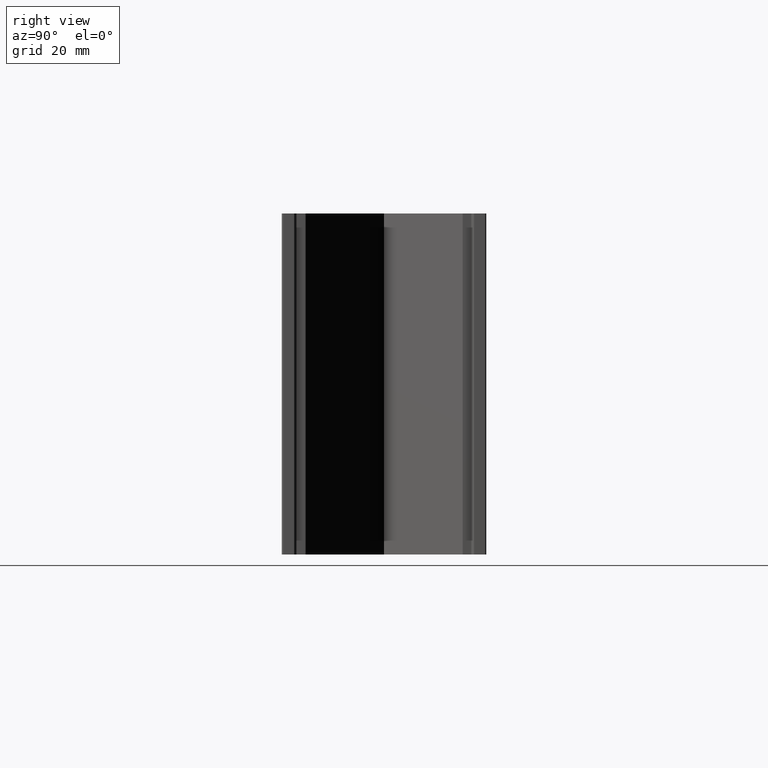
[diagram: clean part render]
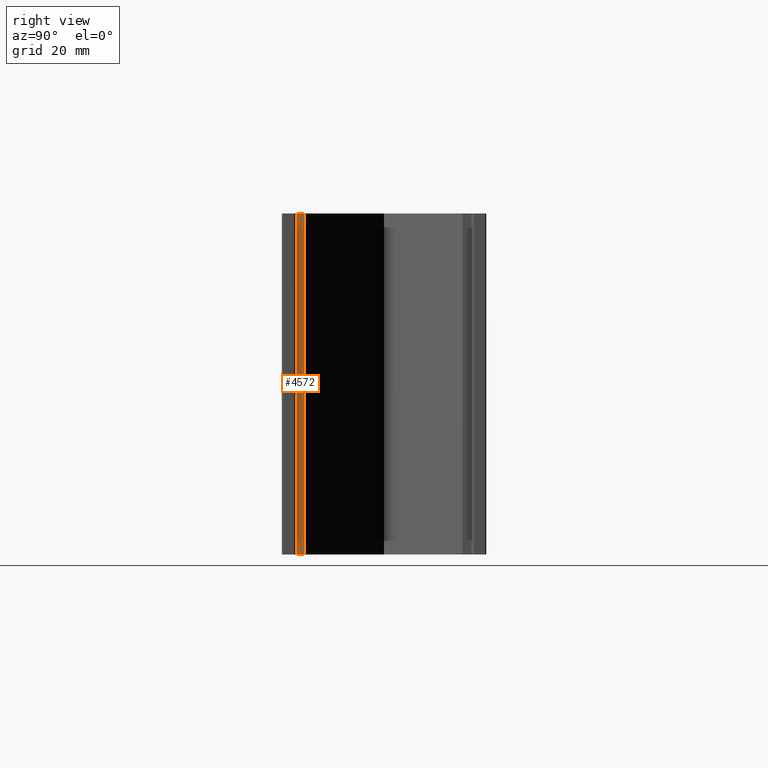
[diagram: same view with one face highlighted and labeled with its STEP entity id]
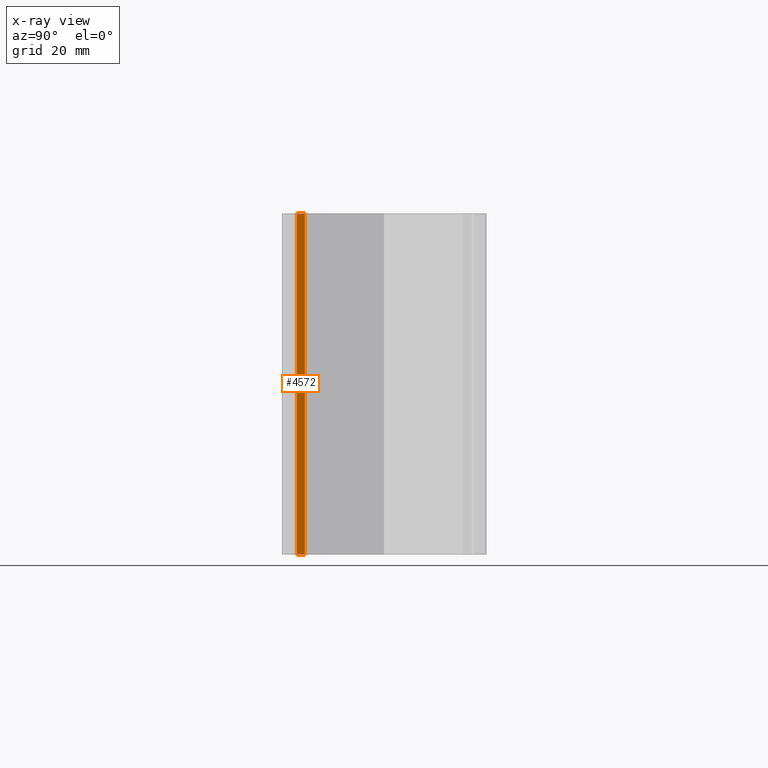
[diagram: x-ray of the same camera — body ghosted, the highlighted face saturated]
A machine part, right view. The second image highlights one B-rep face of the part: STEP entity #4572.
The next image is the same camera in x-ray: the body ghosted, the highlighted face saturated — about 0% of this face is hidden behind the body in this view.
In plain terms, the highlighted planar face has unit normal (-1, -0, 0).
Its self-contained STEP definition (entity closure, byte-faithful):
#109=PLANE('',#5046);
#314=FACE_OUTER_BOUND('',#558,.T.);
#558=EDGE_LOOP('',(#3795,#3796,#3797,#3798));
#748=LINE('',#6932,#1189);
#975=LINE('',#7653,#1416);
#977=LINE('',#7659,#1418);
#978=LINE('',#7660,#1419);
#1189=VECTOR('',#5461,10.);
#1416=VECTOR('',#6246,10.);
#1418=VECTOR('',#6252,10.);
#1419=VECTOR('',#6253,10.);
#1943=VERTEX_POINT('',#6929);
#1944=VERTEX_POINT('',#6931);
#2159=VERTEX_POINT('',#7652);
#2161=VERTEX_POINT('',#7658);
#2419=EDGE_CURVE('',#1944,#1943,#748,.T.);
#2780=EDGE_CURVE('',#2159,#1944,#975,.T.);
#2783=EDGE_CURVE('',#1943,#2161,#977,.T.);
#2784=EDGE_CURVE('',#2159,#2161,#978,.T.);
#3795=ORIENTED_EDGE('',*,*,#2780,.T.);
#3796=ORIENTED_EDGE('',*,*,#2419,.T.);
#3797=ORIENTED_EDGE('',*,*,#2783,.T.);
#3798=ORIENTED_EDGE('',*,*,#2784,.F.);
#4572=ADVANCED_FACE('',(#314),#109,.F.);
#5046=AXIS2_PLACEMENT_3D('',#7657,#6250,#6251);
#5461=DIRECTION('',(1.22464679914735E-16,-1.,0.));
#6246=DIRECTION('',(0.,0.,1.));
#6250=DIRECTION('center_axis',(-1.,-1.22464679914735E-16,0.));
#6251=DIRECTION('ref_axis',(1.22464679914735E-16,-1.,0.));
#6252=DIRECTION('',(0.,0.,-1.));
#6253=DIRECTION('',(1.22464679914735E-16,-1.,0.));
#6929=CARTESIAN_POINT('',(87.,-25.5,100.));
#6931=CARTESIAN_POINT('',(87.,-23.2071067811866,100.));
#6932=CARTESIAN_POINT('',(87.,-23.0000000000001,100.));
#7652=CARTESIAN_POINT('',(87.,-23.2071067811866,0.));
#7653=CARTESIAN_POINT('',(87.,-23.2071067811866,0.));
#7657=CARTESIAN_POINT('Origin',(87.,-23.0000000000001,0.));
#7658=CARTESIAN_POINT('',(87.,-25.5,0.));
#7659=CARTESIAN_POINT('',(87.,-25.5,0.));
#7660=CARTESIAN_POINT('',(87.,-23.0000000000001,0.));